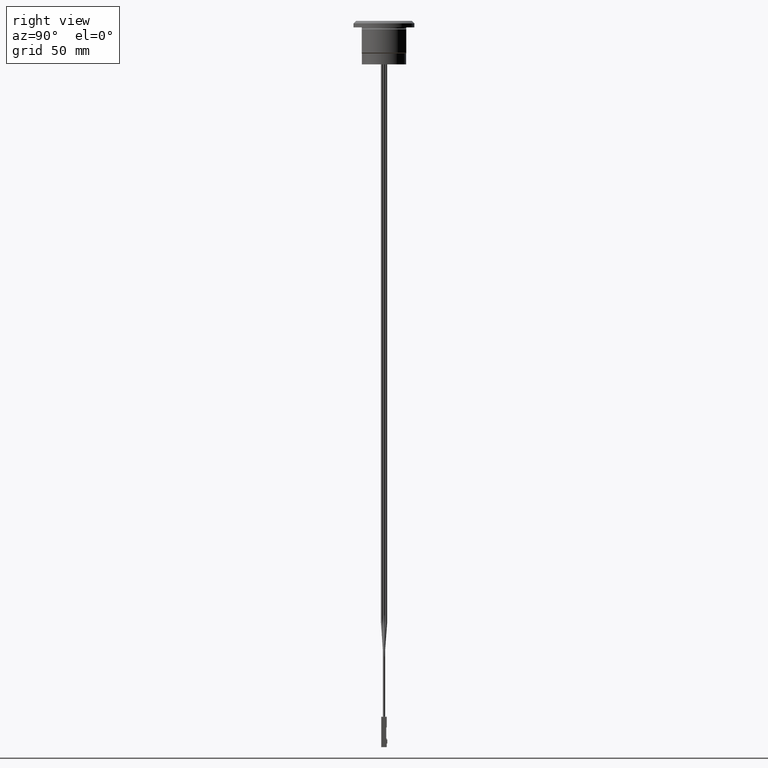
[diagram: clean part render]
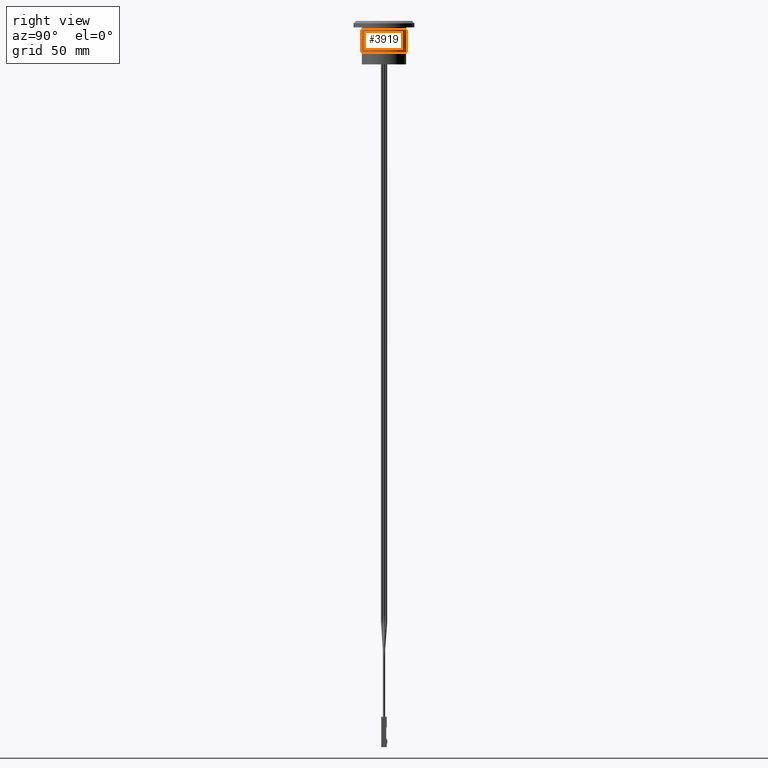
[diagram: same view with one face highlighted and labeled with its STEP entity id]
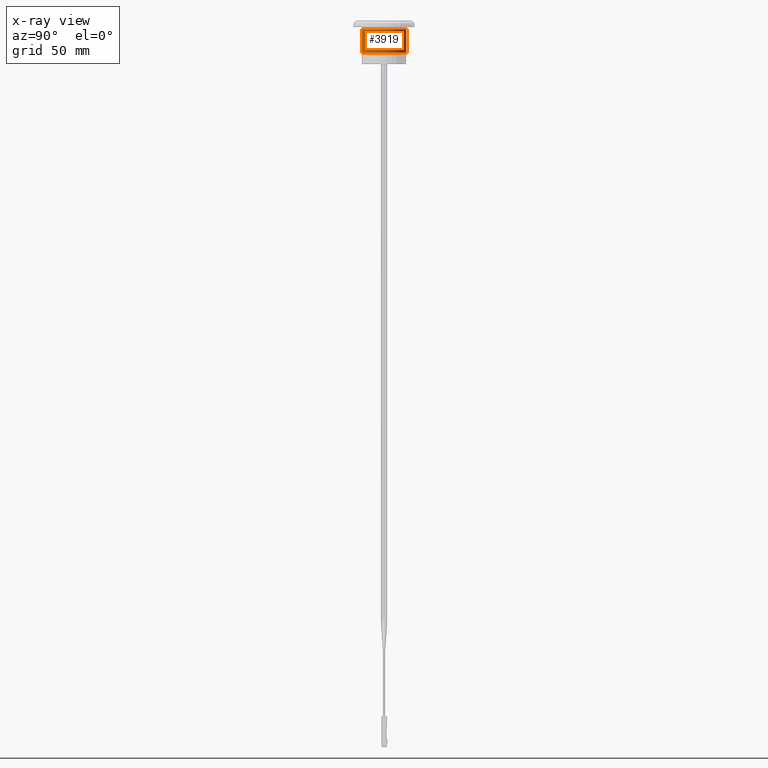
[diagram: x-ray of the same camera — body ghosted, the highlighted face saturated]
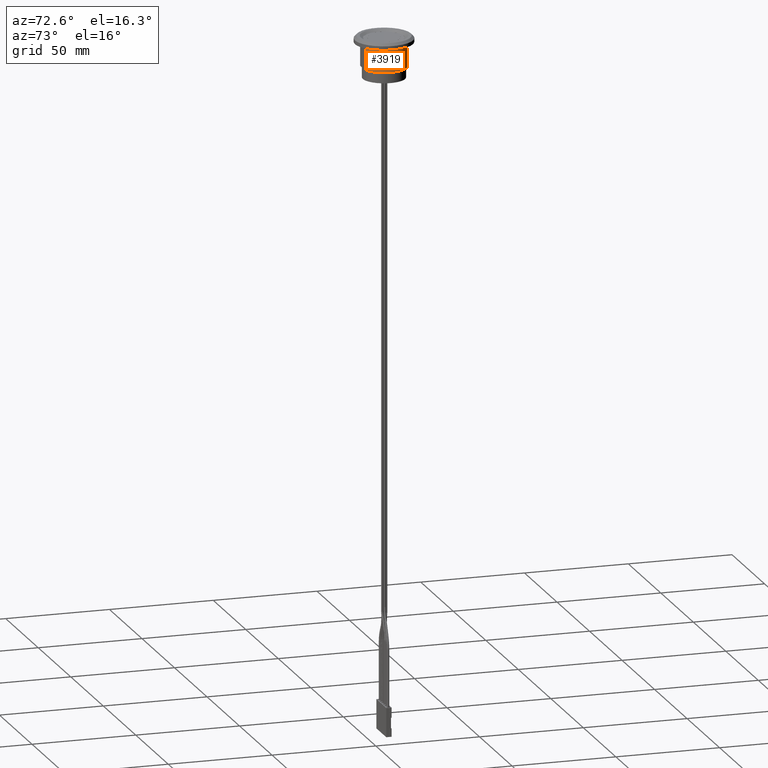
[diagram: same view with one face highlighted and labeled with its STEP entity id]
A machine part, right view. The second image highlights one B-rep face of the part: STEP entity #3919.
The next image is the same camera in x-ray: the body ghosted, the highlighted face saturated — about 0% of this face is hidden behind the body in this view.
A second angle (auxiliary view) of the same face is appended — the face is thin or edge-on in the first view.
In plain terms, the highlighted cylindrical surface (edge-blend (fillet) strip) has radius 11 mm, axis along (0, -0, -1).
Its self-contained STEP definition (entity closure, byte-faithful):
#339=FACE_OUTER_BOUND('',#562,.T.);
#562=EDGE_LOOP('',(#3046,#3047,#3048,#3049));
#812=CIRCLE('',#4238,11.);
#834=CIRCLE('',#4277,11.);
#899=LINE('',#6710,#1297);
#901=LINE('',#6757,#1299);
#1297=VECTOR('',#4795,10.);
#1299=VECTOR('',#4799,10.);
#1769=VERTEX_POINT('',#6705);
#1770=VERTEX_POINT('',#6709);
#1775=VERTEX_POINT('',#6752);
#1776=VERTEX_POINT('',#6756);
#2205=EDGE_CURVE('',#1770,#1769,#899,.T.);
#2211=EDGE_CURVE('',#1776,#1775,#901,.T.);
#2222=EDGE_CURVE('',#1776,#1769,#812,.T.);
#2250=EDGE_CURVE('',#1775,#1770,#834,.T.);
#3046=ORIENTED_EDGE('',*,*,#2205,.T.);
#3047=ORIENTED_EDGE('',*,*,#2222,.F.);
#3048=ORIENTED_EDGE('',*,*,#2211,.T.);
#3049=ORIENTED_EDGE('',*,*,#2250,.T.);
#3822=CYLINDRICAL_SURFACE('',#4278,11.);
#3919=ADVANCED_FACE('',(#339),#3822,.T.);
#4238=AXIS2_PLACEMENT_3D('',#6795,#4812,#4813);
#4277=AXIS2_PLACEMENT_3D('',#6854,#4896,#4897);
#4278=AXIS2_PLACEMENT_3D('',#6855,#4898,#4899);
#4795=DIRECTION('',(1.58312667321469E-15,-7.55596384900277E-16,-1.));
#4799=DIRECTION('',(-1.58312667321469E-15,7.55596384900277E-16,1.));
#4812=DIRECTION('center_axis',(1.58312667321469E-15,-7.55596384900277E-16,
-1.));
#4813=DIRECTION('ref_axis',(-6.12718561868524E-15,1.,-7.55596384900287E-16));
#4896=DIRECTION('center_axis',(1.58312667321469E-15,-7.55596384900277E-16,
-1.));
#4897=DIRECTION('ref_axis',(-6.12718561868524E-15,1.,-7.55596384900287E-16));
#4898=DIRECTION('center_axis',(1.58312667321469E-15,-7.55596384900277E-16,
-1.));
#4899=DIRECTION('ref_axis',(-6.12718561868524E-15,1.,-7.55596384900287E-16));
#6705=CARTESIAN_POINT('',(0.716729855667907,-5.27670999999999,-168.915103873476));
#6709=CARTESIAN_POINT('',(0.716729855667896,-5.27670999999997,-158.18815));
#6710=CARTESIAN_POINT('',(0.716729855667904,-5.27670999999998,-163.551626936738));
#6752=CARTESIAN_POINT('',(0.716729855667754,15.22329,-158.18815));
#6756=CARTESIAN_POINT('',(0.716729855667787,15.22329,-168.915103873476));
#6757=CARTESIAN_POINT('',(0.716729855667768,15.22329,-163.551626936738));
#6795=CARTESIAN_POINT('Origin',(-3.27544999999998,4.97328999999999,-168.915103873476));
#6854=CARTESIAN_POINT('Origin',(-3.27545,4.97329,-158.18815));
#6855=CARTESIAN_POINT('Origin',(-3.27544999999999,4.97329,-163.551626936738));